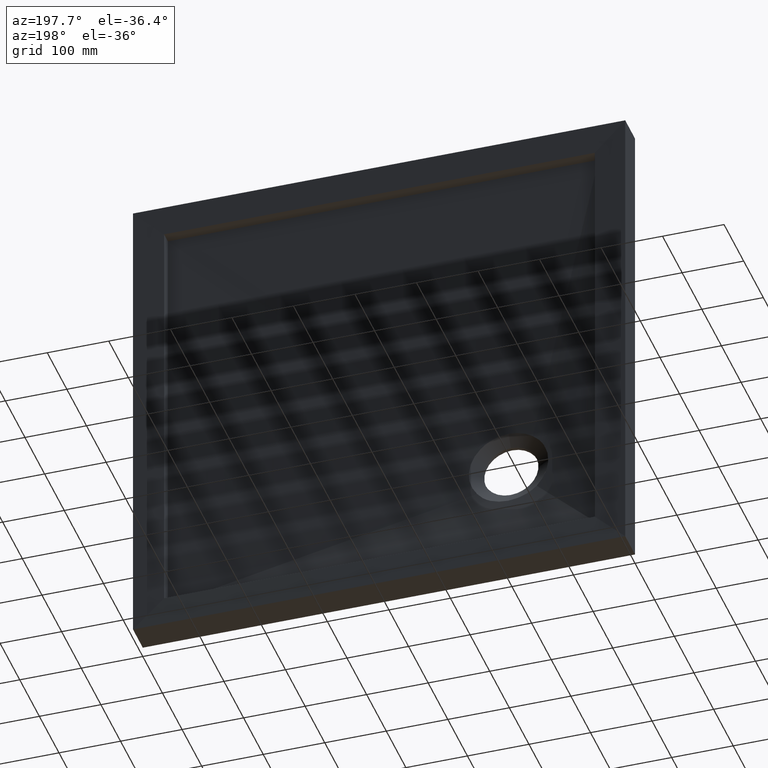
[diagram: clean part render]
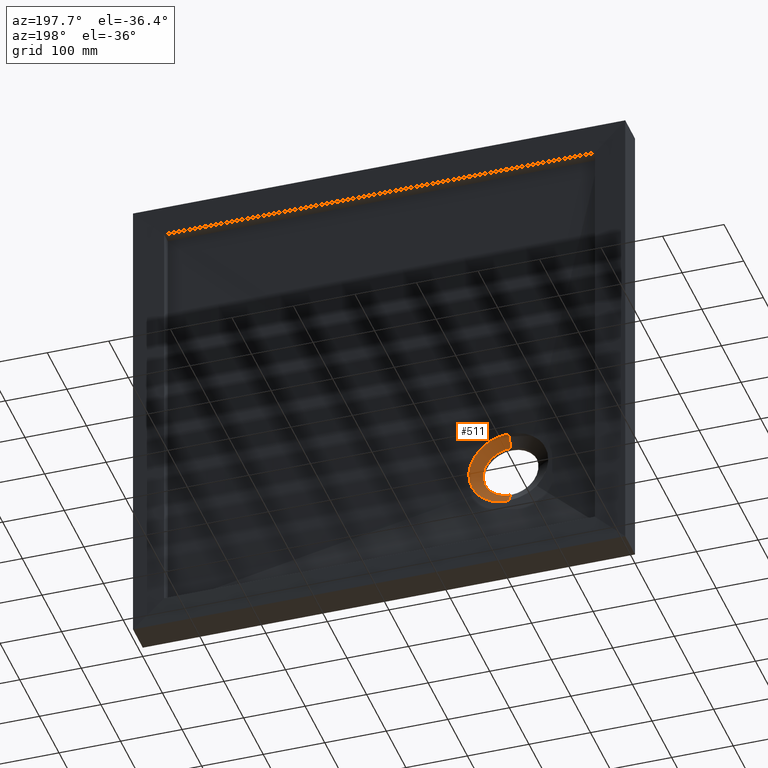
[diagram: same view with one face highlighted and labeled with its STEP entity id]
A machine part, auxiliary view. The second image highlights one B-rep face of the part: STEP entity #511.
In plain terms, the highlighted conical surface has half-angle 60 deg.
Its self-contained STEP definition (entity closure, byte-faithful):
#2 = CARTESIAN_POINT ( 'NONE',  ( -162.4884796870361800, 17.24360072580267600, -147.5188203889417800 ) ) ;
#13 = VECTOR ( 'NONE', #884, 1000.000000000000000 ) ;
#16 = CARTESIAN_POINT ( 'NONE',  ( -158.1062934945999000, 17.54700538379253100, -249.6982631008306200 ) ) ;
#17 = B_SPLINE_CURVE_WITH_KNOTS ( 'NONE', 3,
 ( #148, #517, #652, #508, #579, #60, #780, #973, #215, #513, #181, #636, #863, #547, #23, #105, #469, #937, #401, #858, #333, #441, #649, #656, #583, #832, #950, #245, #29, #416 ),
 .UNSPECIFIED., .F., .F.,
 ( 4, 2, 2, 2, 2, 2, 2, 2, 2, 2, 2, 2, 2, 2, 4 ),
 ( 0.0000000000000000000, 0.01157438483520721100, 0.01736157725281081700, 0.02025517346161263100, 0.02314876967041445300, 0.03472315450562157200, 0.04051034692322514500, 0.04629753934082871100, 0.05787192417603594800, 0.06365911659363959800, 0.06655271280244146000, 0.06944630901124332300, 0.08102069384645099700, 0.08680788626405482000, 0.09259507868165863000 ),
 .UNSPECIFIED. ) ;
#20 = CARTESIAN_POINT ( 'NONE',  ( -160.7927491918916300, 17.23909432803818100, -148.7820513666684100 ) ) ;
#23 = CARTESIAN_POINT ( 'NONE',  ( -135.6501635025005300, 17.32047971003643000, -193.9152245404798100 ) ) ;
#29 = CARTESIAN_POINT ( 'NONE',  ( -147.5490899727705300, 17.35682598146925000, -237.8816348552682600 ) ) ;
#40 = EDGE_LOOP ( 'NONE', ( #258, #202, #84, #725, #117, #86, #56 ) ) ;
#43 = EDGE_CURVE ( 'NONE', #175, #67, #669, .T. ) ;
#56 = ORIENTED_EDGE ( 'NONE', *, *, #342, .F. ) ;
#60 = CARTESIAN_POINT ( 'NONE',  ( -143.3886457946818500, 17.26081969477768800, -169.0661885397876700 ) ) ;
#67 = VERTEX_POINT ( 'NONE', #956 ) ;
#77 = CARTESIAN_POINT ( 'NONE',  ( -157.5082740646553800, 17.23026755273376100, -151.4925876689973200 ) ) ;
#84 = ORIENTED_EDGE ( 'NONE', *, *, #972, .T. ) ;
#86 = ORIENTED_EDGE ( 'NONE', *, *, #196, .T. ) ;
#89 = VECTOR ( 'NONE', #346, 1000.000000000000000 ) ;
#103 = FACE_OUTER_BOUND ( 'NONE', #40, .T. ) ;
#105 = CARTESIAN_POINT ( 'NONE',  ( -135.2554138333168200, 17.33241970779187800, -199.7330269217387700 ) ) ;
#117 = ORIENTED_EDGE ( 'NONE', *, *, #446, .T. ) ;
#134 = CARTESIAN_POINT ( 'NONE',  ( -154.4362962624238100, 17.22184620260181700, -154.4362962624236100 ) ) ;
#147 = DIRECTION ( 'NONE',  ( 0.0000000000000000000, 0.0000000000000000000, 1.000000000000000000 ) ) ;
#148 = CARTESIAN_POINT ( 'NONE',  ( -154.4362962624238100, 17.22184620260181700, -154.4362962624236100 ) ) ;
#172 = CARTESIAN_POINT ( 'NONE',  ( -150.1299593099688500, 17.37707173766290600, -241.2939544720571000 ) ) ;
#175 = VERTEX_POINT ( 'NONE', #668 ) ;
#181 = CARTESIAN_POINT ( 'NONE',  ( -138.3027925838769100, 17.29003303198448200, -180.6172169857675300 ) ) ;
#196 = EDGE_CURVE ( 'NONE', #917, #928, #782, .T. ) ;
#202 = ORIENTED_EDGE ( 'NONE', *, *, #43, .T. ) ;
#213 = AXIS2_PLACEMENT_3D ( 'NONE', #799, #360, #633 ) ;
#215 = CARTESIAN_POINT ( 'NONE',  ( -141.6083654939885400, 17.26973263923794400, -172.5379269674774300 ) ) ;
#219 = LINE ( 'NONE', #321, #13 ) ;
#236 = VERTEX_POINT ( 'NONE', #754 ) ;
#245 = CARTESIAN_POINT ( 'NONE',  ( -146.4262446671050700, 17.35851181960155300, -236.2814782323469300 ) ) ;
#258 = ORIENTED_EDGE ( 'NONE', *, *, #502, .F. ) ;
#270 = CARTESIAN_POINT ( 'NONE',  ( -200.0000000000000900, 17.54700538379253100, -199.9999999999998900 ) ) ;
#321 = CARTESIAN_POINT ( 'NONE',  ( -200.0000000000000900, 17.54700538379253100, -134.9999999999998600 ) ) ;
#333 = CARTESIAN_POINT ( 'NONE',  ( -137.1089160109258700, 17.35535560263432900, -215.0870418290095900 ) ) ;
#342 = EDGE_CURVE ( 'NONE', #236, #928, #810, .T. ) ;
#346 = DIRECTION ( 'NONE',  ( 1.060575238724906800E-016, 0.5000000000000001100, -0.8660254037844386000 ) ) ;
#360 = DIRECTION ( 'NONE',  ( -0.0000000000000000000, -1.000000000000000000, -0.0000000000000000000 ) ) ;
#385 = LINE ( 'NONE', #696, #89 ) ;
#386 = AXIS2_PLACEMENT_3D ( 'NONE', #898, #654, #147 ) ;
#401 = CARTESIAN_POINT ( 'NONE',  ( -136.2988510003198700, 17.35094473791020100, -211.2665748141525100 ) ) ;
#416 = CARTESIAN_POINT ( 'NONE',  ( -148.7452335887667200, 17.35472762278830700, -239.4305123182896600 ) ) ;
#434 = CARTESIAN_POINT ( 'NONE',  ( -148.7452335887667200, 17.35472762278830700, -239.4305123182896600 ) ) ;
#438 = CARTESIAN_POINT ( 'NONE',  ( -158.1062934945999000, 17.54700538379253100, -249.6982631008306200 ) ) ;
#441 = CARTESIAN_POINT ( 'NONE',  ( -137.5891211232575700, 17.35720442334624300, -216.9765618216551100 ) ) ;
#446 = EDGE_CURVE ( 'NONE', #769, #917, #17, .T. ) ;
#469 = CARTESIAN_POINT ( 'NONE',  ( -135.3437022497860200, 17.33950731118324400, -203.5919927739900900 ) ) ;
#502 = EDGE_CURVE ( 'NONE', #175, #236, #385, .T. ) ;
#508 = CARTESIAN_POINT ( 'NONE',  ( -145.8643792576013100, 17.24998873419289000, -164.9080823284019200 ) ) ;
#511 = ADVANCED_FACE ( 'NONE', ( #103 ), #886, .F. ) ;
#513 = CARTESIAN_POINT ( 'NONE',  ( -139.5829869341098700, 17.28100777029490900, -176.9715667576160500 ) ) ;
#517 = CARTESIAN_POINT ( 'NONE',  ( -151.6596039118796600, 17.22946025454435000, -157.1943380708336200 ) ) ;
#518 = CARTESIAN_POINT ( 'NONE',  ( -154.4362962624238100, 17.22184620260181700, -154.4362962624236100 ) ) ;
#538 = CARTESIAN_POINT ( 'NONE',  ( -151.6063945238022900, 17.40284965561676200, -243.0818776657485500 ) ) ;
#545 = CARTESIAN_POINT ( 'NONE',  ( -156.3829326504871900, 17.50190604108206200, -248.1433716111232900 ) ) ;
#547 = CARTESIAN_POINT ( 'NONE',  ( -135.8719775945403100, 17.31629163366740800, -191.9634456472526300 ) ) ;
#548 = CARTESIAN_POINT ( 'NONE',  ( -200.0000000000124800, 17.33264435689877600, -135.3712841897424500 ) ) ;
#555 = B_SPLINE_CURVE_WITH_KNOTS ( 'NONE', 3,
 ( #548, #867, #916, #930, #932, #939, #945, #952, #962, #963, #965, #967, #970, #974, #976, #2, #20, #77, #740, #134 ),
 .UNSPECIFIED., .F., .F.,
 ( 4, 2, 2, 2, 2, 2, 2, 2, 2, 4 ),
 ( 0.04221060008206439800, 0.04535945574195936900, 0.04850831140185434000, 0.05480602272164428200, 0.06110373404143422400, 0.06425258970132918800, 0.06740144536122416600, 0.07999686800080405000, 0.08629457932059392300, 0.09259229064038380900 ),
 .UNSPECIFIED. ) ;
#560 = AXIS2_PLACEMENT_3D ( 'NONE', #270, #566, #716 ) ;
#566 = DIRECTION ( 'NONE',  ( -0.0000000000000000000, -1.000000000000000000, -0.0000000000000000000 ) ) ;
#568 = CARTESIAN_POINT ( 'NONE',  ( -200.0000000000124800, 17.33264435689877600, -135.3712841897424500 ) ) ;
#579 = CARTESIAN_POINT ( 'NONE',  ( -144.8313167953093300, 17.25427113383880200, -166.5407863974407100 ) ) ;
#583 = CARTESIAN_POINT ( 'NONE',  ( -140.7043667255489400, 17.36275849013300000, -226.1271209512091800 ) ) ;
#633 = DIRECTION ( 'NONE',  ( 0.0000000000000000000, 0.0000000000000000000, 1.000000000000000000 ) ) ;
#636 = CARTESIAN_POINT ( 'NONE',  ( -136.8778001428282200, 17.30334485218695000, -186.2294853443344200 ) ) ;
#649 = CARTESIAN_POINT ( 'NONE',  ( -137.8499448108227900, 17.35802328252743700, -217.9127039942383700 ) ) ;
#652 = CARTESIAN_POINT ( 'NONE',  ( -149.1741330954056100, 17.23743241423667500, -160.1603208216743000 ) ) ;
#654 = DIRECTION ( 'NONE',  ( 0.0000000000000000000, 1.000000000000000000, 0.0000000000000000000 ) ) ;
#656 = CARTESIAN_POINT ( 'NONE',  ( -139.2559334479573200, 17.36160492171605400, -222.5510475057615500 ) ) ;
#668 = CARTESIAN_POINT ( 'NONE',  ( -200.0000000000000900, 5.999999999999972500, -244.9999999999998600 ) ) ;
#669 = CIRCLE ( 'NONE', #213, 44.99999999999995700 ) ;
#689 = CARTESIAN_POINT ( 'NONE',  ( -154.7366641917503800, 17.46533281921988500, -246.5107133477945400 ) ) ;
#696 = CARTESIAN_POINT ( 'NONE',  ( -200.0000000000000900, 17.54700538379253100, -264.9999999999998900 ) ) ;
#716 = DIRECTION ( 'NONE',  ( 0.0000000000000000000, 0.0000000000000000000, -1.000000000000000000 ) ) ;
#725 = ORIENTED_EDGE ( 'NONE', *, *, #807, .T. ) ;
#740 = CARTESIAN_POINT ( 'NONE',  ( -155.9368672474430200, 17.22598878861649400, -152.9255780554526600 ) ) ;
#754 = CARTESIAN_POINT ( 'NONE',  ( -200.0000000000000900, 17.54700538379253100, -264.9999999999998900 ) ) ;
#769 = VERTEX_POINT ( 'NONE', #518 ) ;
#780 = CARTESIAN_POINT ( 'NONE',  ( -142.9256019260925000, 17.26302390855789800, -169.9207321686897400 ) ) ;
#782 = B_SPLINE_CURVE_WITH_KNOTS ( 'NONE', 3,
 ( #872, #172, #538, #689, #545, #16 ),
 .UNSPECIFIED., .F., .F.,
 ( 4, 2, 4 ),
 ( 0.0000000000000000000, 0.006956294326144373700, 0.01391258865228874700 ),
 .UNSPECIFIED. ) ;
#799 = CARTESIAN_POINT ( 'NONE',  ( -200.0000000000000900, 5.999999999999972500, -199.9999999999998900 ) ) ;
#800 = VERTEX_POINT ( 'NONE', #568 ) ;
#807 = EDGE_CURVE ( 'NONE', #800, #769, #555, .T. ) ;
#810 = CIRCLE ( 'NONE', #560, 65.00000000000000000 ) ;
#832 = CARTESIAN_POINT ( 'NONE',  ( -143.3602745235093900, 17.36176181177965100, -231.2902464456967900 ) ) ;
#858 = CARTESIAN_POINT ( 'NONE',  ( -136.8891935148945400, 17.35432290033587700, -214.1316168369742700 ) ) ;
#863 = CARTESIAN_POINT ( 'NONE',  ( -136.4858786764587500, 17.30773311880392700, -188.1243597473794900 ) ) ;
#867 = CARTESIAN_POINT ( 'NONE',  ( -198.9376131624944700, 17.33063708763126000, -135.3747608820981200 ) ) ;
#872 = CARTESIAN_POINT ( 'NONE',  ( -148.7452335887667200, 17.35472762278830700, -239.4305123182896600 ) ) ;
#884 = DIRECTION ( 'NONE',  ( 0.0000000000000000000, 0.5000000000000001100, 0.8660254037844386000 ) ) ;
#886 = CONICAL_SURFACE ( 'NONE', #386, 65.00000000000002800, 1.047197551196597600 ) ;
#898 = CARTESIAN_POINT ( 'NONE',  ( -200.0000000000000900, 17.54700538379253100, -199.9999999999998900 ) ) ;
#916 = CARTESIAN_POINT ( 'NONE',  ( -197.8724870569156500, 17.32854938352801400, -135.4047286283941400 ) ) ;
#917 = VERTEX_POINT ( 'NONE', #434 ) ;
#928 = VERTEX_POINT ( 'NONE', #438 ) ;
#930 = CARTESIAN_POINT ( 'NONE',  ( -195.7576702556703200, 17.32428076642008500, -135.5164941019333500 ) ) ;
#932 = CARTESIAN_POINT ( 'NONE',  ( -194.7050995688183000, 17.32209578876188200, -135.5982682694156800 ) ) ;
#937 = CARTESIAN_POINT ( 'NONE',  ( -135.9948398773279300, 17.34831182298721300, -209.3515608755347200 ) ) ;
#939 = CARTESIAN_POINT ( 'NONE',  ( -191.5616596119877500, 17.31542867138402600, -135.9199754803249200 ) ) ;
#945 = CARTESIAN_POINT ( 'NONE',  ( -189.4850339215688800, 17.31081878293755600, -136.2361403800722100 ) ) ;
#950 = CARTESIAN_POINT ( 'NONE',  ( -144.3271984657026800, 17.36098542900614900, -232.9785731581445700 ) ) ;
#952 = CARTESIAN_POINT ( 'NONE',  ( -185.3693847915799900, 17.30134654109862400, -137.0697190232172900 ) ) ;
#956 = CARTESIAN_POINT ( 'NONE',  ( -200.0000000000000900, 5.999999999999972500, -154.9999999999999400 ) ) ;
#962 = CARTESIAN_POINT ( 'NONE',  ( -183.3303583496790200, 17.29649146707079400, -137.5871167853634900 ) ) ;
#963 = CARTESIAN_POINT ( 'NONE',  ( -180.3005131891302700, 17.28914968811720600, -138.5167892299793900 ) ) ;
#965 = CARTESIAN_POINT ( 'NONE',  ( -179.2953570054591500, 17.28668856569679200, -138.8523283401640900 ) ) ;
#967 = CARTESIAN_POINT ( 'NONE',  ( -177.2948265160976600, 17.28174059258620300, -139.5757600676638500 ) ) ;
#970 = CARTESIAN_POINT ( 'NONE',  ( -176.3043596708031100, 17.27926580919731600, -139.9619732848511500 ) ) ;
#972 = EDGE_CURVE ( 'NONE', #67, #800, #219, .T. ) ;
#973 = CARTESIAN_POINT ( 'NONE',  ( -142.0358106296549200, 17.26747750514513800, -171.6557361764526500 ) ) ;
#974 = CARTESIAN_POINT ( 'NONE',  ( -171.4252048975879700, 17.26697445444292400, -142.0037380170659300 ) ) ;
#976 = CARTESIAN_POINT ( 'NONE',  ( -167.7285241045840700, 17.25741437525097800, -143.9972105975160200 ) ) ;